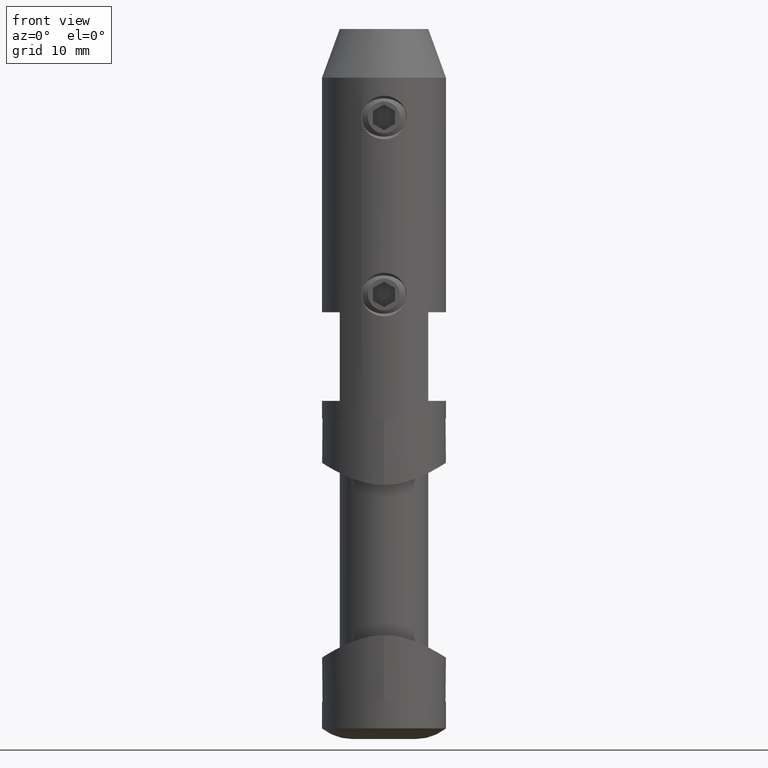
[diagram: clean part render]
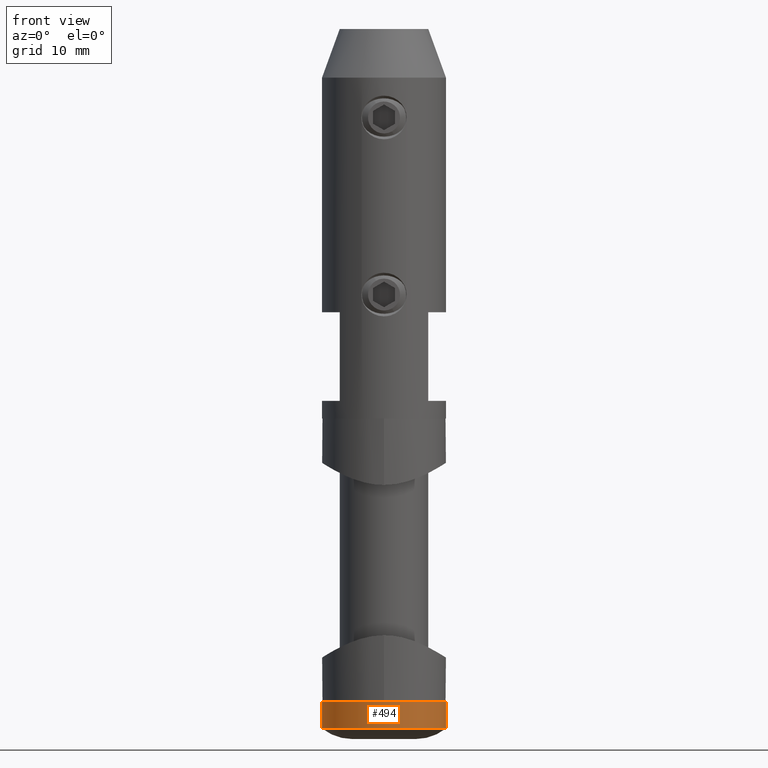
[diagram: same view with one face highlighted and labeled with its STEP entity id]
A machine part, front view. The second image highlights one B-rep face of the part: STEP entity #494.
In plain terms, the highlighted cylindrical surface (partial cylindrical patch) has radius 7 mm, axis along (0, 0, 1).
Its self-contained STEP definition (entity closure, byte-faithful):
#494 = ADVANCED_FACE ( 'NONE', ( #541 ), #11589, .T. ) ;
#541 = FACE_OUTER_BOUND ( 'NONE', #1649, .T. ) ;
#708 = ORIENTED_EDGE ( 'NONE', *, *, #18275, .F. ) ;
#938 = CARTESIAN_POINT ( 'NONE',  ( 6.999999999999995559, 0.000000000000000000, -16.50000000000000000 ) ) ;
#1371 = DIRECTION ( 'NONE',  ( 1.000000000000000000, 0.000000000000000000, 0.000000000000000000 ) ) ;
#1593 = VERTEX_POINT ( 'NONE', #15648 ) ;
#1649 = EDGE_LOOP ( 'NONE', ( #2613, #6343, #17781, #708 ) ) ;
#1818 = DIRECTION ( 'NONE',  ( -0.000000000000000000, -0.000000000000000000, 1.000000000000000000 ) ) ;
#2433 = VECTOR ( 'NONE', #1818, 1000.000000000000000 ) ;
#2613 = ORIENTED_EDGE ( 'NONE', *, *, #12896, .F. ) ;
#3269 = EDGE_CURVE ( 'NONE', #11727, #13557, #3893, .T. ) ;
#3498 = LINE ( 'NONE', #9114, #11163 ) ;
#3893 = LINE ( 'NONE', #18628, #2433 ) ;
#6013 = DIRECTION ( 'NONE',  ( -0.000000000000000000, -0.000000000000000000, 1.000000000000000000 ) ) ;
#6343 = ORIENTED_EDGE ( 'NONE', *, *, #9454, .T. ) ;
#8420 = CARTESIAN_POINT ( 'NONE',  ( -7.000000000000000000, 8.572527594031473190E-16, -13.49999999999999822 ) ) ;
#9114 = CARTESIAN_POINT ( 'NONE',  ( -7.000000000000000000, 8.572527594031473190E-16, -13.49999999999999822 ) ) ;
#9320 = DIRECTION ( 'NONE',  ( 1.000000000000000000, 0.000000000000000000, 0.000000000000000000 ) ) ;
#9454 = EDGE_CURVE ( 'NONE', #1593, #11727, #18441, .T. ) ;
#9981 = CARTESIAN_POINT ( 'NONE',  ( 0.000000000000000000, 0.000000000000000000, -13.49999999999999822 ) ) ;
#10161 = AXIS2_PLACEMENT_3D ( 'NONE', #15130, #6013, #1371 ) ;
#10425 = CIRCLE ( 'NONE', #17239, 7.000000000000000000 ) ;
#10748 = CARTESIAN_POINT ( 'NONE',  ( 7.000000000000000000, 0.000000000000000000, -13.49999999999999822 ) ) ;
#11163 = VECTOR ( 'NONE', #19872, 1000.000000000000000 ) ;
#11589 = CYLINDRICAL_SURFACE ( 'NONE', #10161, 7.000000000000000000 ) ;
#11639 = AXIS2_PLACEMENT_3D ( 'NONE', #15370, #15306, #9320 ) ;
#11727 = VERTEX_POINT ( 'NONE', #938 ) ;
#12238 = VERTEX_POINT ( 'NONE', #8420 ) ;
#12896 = EDGE_CURVE ( 'NONE', #1593, #12238, #3498, .T. ) ;
#13557 = VERTEX_POINT ( 'NONE', #10748 ) ;
#14335 = DIRECTION ( 'NONE',  ( 1.000000000000000000, 0.000000000000000000, 0.000000000000000000 ) ) ;
#15130 = CARTESIAN_POINT ( 'NONE',  ( 0.000000000000000000, 0.000000000000000000, -13.49999999999999822 ) ) ;
#15306 = DIRECTION ( 'NONE',  ( -0.000000000000000000, -0.000000000000000000, 1.000000000000000000 ) ) ;
#15370 = CARTESIAN_POINT ( 'NONE',  ( 0.000000000000000000, 0.000000000000000000, -16.50000000000000000 ) ) ;
#15648 = CARTESIAN_POINT ( 'NONE',  ( -6.999999999999995559, 8.572527594031468259E-16, -16.50000000000000000 ) ) ;
#15956 = DIRECTION ( 'NONE',  ( -0.000000000000000000, -0.000000000000000000, 1.000000000000000000 ) ) ;
#17239 = AXIS2_PLACEMENT_3D ( 'NONE', #9981, #15956, #14335 ) ;
#17781 = ORIENTED_EDGE ( 'NONE', *, *, #3269, .T. ) ;
#18275 = EDGE_CURVE ( 'NONE', #12238, #13557, #10425, .T. ) ;
#18441 = CIRCLE ( 'NONE', #11639, 7.000000000000000000 ) ;
#18628 = CARTESIAN_POINT ( 'NONE',  ( 7.000000000000000000, 0.000000000000000000, -13.49999999999999822 ) ) ;
#19872 = DIRECTION ( 'NONE',  ( -0.000000000000000000, -0.000000000000000000, 1.000000000000000000 ) ) ;